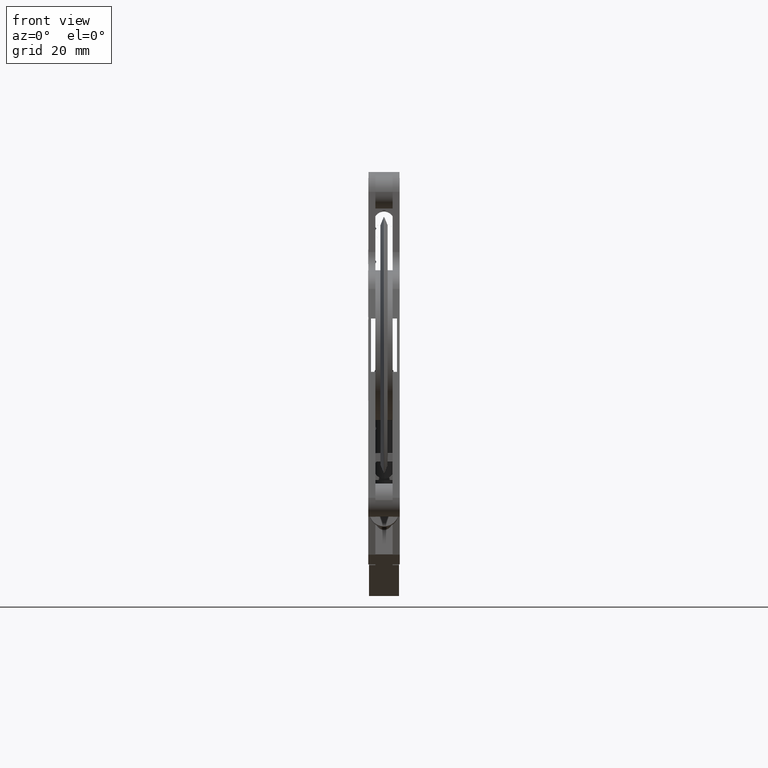
[diagram: clean part render]
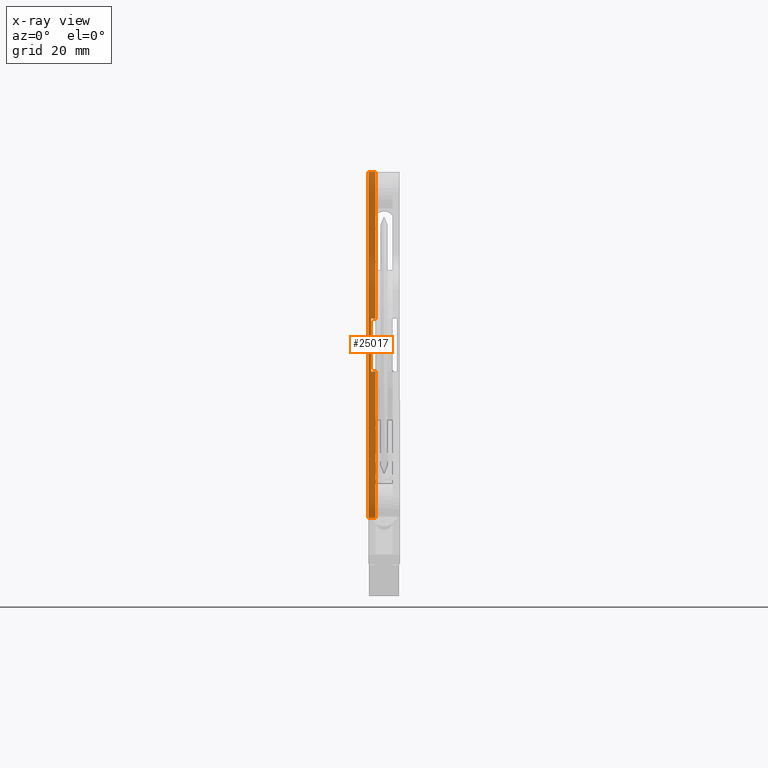
[diagram: x-ray — body ghosted, one internal face saturated and labeled with its STEP entity id]
A machine part, front view, then the same camera in x-ray: the body is ghosted and one INTERNAL B-rep face — a face not visible from any outside direction — is saturated and labeled: STEP entity #25017.
In plain terms, the highlighted planar face has unit normal (0, -1, 0).
Its self-contained STEP definition (entity closure, byte-faithful):
#175 = ORIENTED_EDGE ( 'NONE', *, *, #31965, .F. ) ;
#520 = FACE_OUTER_BOUND ( 'NONE', #5886, .T. ) ;
#954 = CARTESIAN_POINT ( 'NONE',  ( 0.003937007874015747977, 1.259453103652724337, -0.7480314960629920185 ) ) ;
#976 = EDGE_CURVE ( 'NONE', #14698, #24754, #32802, .T. ) ;
#1666 = LINE ( 'NONE', #22722, #4060 ) ;
#2280 = ORIENTED_EDGE ( 'NONE', *, *, #13785, .F. ) ;
#2714 = EDGE_CURVE ( 'NONE', #14698, #9933, #9457, .T. ) ;
#3417 = ORIENTED_EDGE ( 'NONE', *, *, #14573, .F. ) ;
#3760 = VERTEX_POINT ( 'NONE', #34077 ) ;
#4032 = VECTOR ( 'NONE', #12441, 39.37007874015748143 ) ;
#4060 = VECTOR ( 'NONE', #13698, 39.37007874015748143 ) ;
#4786 = VERTEX_POINT ( 'NONE', #7433 ) ;
#5886 = EDGE_LOOP ( 'NONE', ( #22400, #23638, #2280, #9876, #175, #28249, #3417, #19830, #16591, #26909 ) ) ;
#6127 = DIRECTION ( 'NONE',  ( -1.000000000000000000, -0.000000000000000000, -0.000000000000000000 ) ) ;
#6332 = VECTOR ( 'NONE', #12739, 39.37007874015748143 ) ;
#6416 = EDGE_CURVE ( 'NONE', #11910, #37354, #15331, .T. ) ;
#7123 = VECTOR ( 'NONE', #29847, 39.37007874015748143 ) ;
#7177 = VECTOR ( 'NONE', #15417, 39.37007874015748143 ) ;
#7433 = CARTESIAN_POINT ( 'NONE',  ( 0.08425196850393701364, 1.259453103652724337, 2.047244094488188892 ) ) ;
#7743 = CARTESIAN_POINT ( 'NONE',  ( 0.000000000000000000, 1.259453103652724337, -2.047244094488188892 ) ) ;
#8311 = CARTESIAN_POINT ( 'NONE',  ( 0.08425196850393701364, 1.259453103652724337, -2.047244094488188892 ) ) ;
#8745 = CARTESIAN_POINT ( 'NONE',  ( 0.08425196850393701364, 1.259453103652724337, -2.047244094488188892 ) ) ;
#9423 = LINE ( 'NONE', #21370, #25115 ) ;
#9457 = LINE ( 'NONE', #18434, #13115 ) ;
#9622 = PLANE ( 'NONE',  #23268 ) ;
#9682 = EDGE_CURVE ( 'NONE', #4786, #3760, #33813, .T. ) ;
#9876 = ORIENTED_EDGE ( 'NONE', *, *, #9682, .F. ) ;
#9933 = VERTEX_POINT ( 'NONE', #7743 ) ;
#10094 = VERTEX_POINT ( 'NONE', #35897 ) ;
#11884 = CARTESIAN_POINT ( 'NONE',  ( 0.000000000000000000, 1.259453103652724337, -2.047244094488188892 ) ) ;
#11910 = VERTEX_POINT ( 'NONE', #30495 ) ;
#12441 = DIRECTION ( 'NONE',  ( 0.000000000000000000, 0.000000000000000000, 1.000000000000000000 ) ) ;
#12739 = DIRECTION ( 'NONE',  ( 1.000000000000000000, 0.000000000000000000, 0.000000000000000000 ) ) ;
#13115 = VECTOR ( 'NONE', #30376, 39.37007874015748143 ) ;
#13335 = CARTESIAN_POINT ( 'NONE',  ( 0.08425196850393701364, 1.259453103652724337, -2.047244094488188892 ) ) ;
#13698 = DIRECTION ( 'NONE',  ( -1.000000000000000000, 0.000000000000000000, 0.000000000000000000 ) ) ;
#13785 = EDGE_CURVE ( 'NONE', #3760, #11910, #30393, .T. ) ;
#13907 = VERTEX_POINT ( 'NONE', #29766 ) ;
#14228 = LINE ( 'NONE', #26165, #15031 ) ;
#14573 = EDGE_CURVE ( 'NONE', #28756, #10094, #9423, .T. ) ;
#14698 = VERTEX_POINT ( 'NONE', #8311 ) ;
#14925 = EDGE_CURVE ( 'NONE', #10094, #13907, #33664, .T. ) ;
#15031 = VECTOR ( 'NONE', #38092, 39.37007874015748143 ) ;
#15331 = LINE ( 'NONE', #27464, #32038 ) ;
#15417 = DIRECTION ( 'NONE',  ( -1.000000000000000000, -0.000000000000000000, -0.000000000000000000 ) ) ;
#15891 = CARTESIAN_POINT ( 'NONE',  ( 0.08425196850393701364, 1.259453103652724337, -0.3149606299212599492 ) ) ;
#16591 = ORIENTED_EDGE ( 'NONE', *, *, #976, .F. ) ;
#18434 = CARTESIAN_POINT ( 'NONE',  ( 0.08425196850393701364, 1.259453103652724337, -2.047244094488188892 ) ) ;
#19830 = ORIENTED_EDGE ( 'NONE', *, *, #34298, .F. ) ;
#19857 = CARTESIAN_POINT ( 'NONE',  ( 0.03307086614173228301, 1.259453103652724337, -0.3149606299212599492 ) ) ;
#21370 = CARTESIAN_POINT ( 'NONE',  ( 0.03307086614173228301, 1.259453103652724337, -2.047244094488188892 ) ) ;
#22021 = DIRECTION ( 'NONE',  ( -0.000000000000000000, -0.000000000000000000, -1.000000000000000000 ) ) ;
#22400 = ORIENTED_EDGE ( 'NONE', *, *, #27583, .T. ) ;
#22550 = CARTESIAN_POINT ( 'NONE',  ( 0.08425196850393701364, 1.259453103652724337, 0.3149606299212598381 ) ) ;
#22722 = CARTESIAN_POINT ( 'NONE',  ( 0.08425196850393701364, 1.259453103652724337, -0.3149606299212598381 ) ) ;
#23268 = AXIS2_PLACEMENT_3D ( 'NONE', #13335, #37578, #28570 ) ;
#23638 = ORIENTED_EDGE ( 'NONE', *, *, #6416, .F. ) ;
#24496 = DIRECTION ( 'NONE',  ( -0.000000000000000000, 0.000000000000000000, 1.000000000000000000 ) ) ;
#24754 = VERTEX_POINT ( 'NONE', #15891 ) ;
#25017 = ADVANCED_FACE ( 'NONE', ( #520 ), #9622, .F. ) ;
#25115 = VECTOR ( 'NONE', #24496, 39.37007874015748143 ) ;
#26165 = CARTESIAN_POINT ( 'NONE',  ( 0.08425196850393701364, 1.259453103652724337, -2.047244094488188892 ) ) ;
#26909 = ORIENTED_EDGE ( 'NONE', *, *, #2714, .T. ) ;
#27464 = CARTESIAN_POINT ( 'NONE',  ( 0.003937007874015747977, 1.259453103652724337, -0.7480314960629920185 ) ) ;
#27583 = EDGE_CURVE ( 'NONE', #9933, #37354, #35168, .T. ) ;
#27938 = CARTESIAN_POINT ( 'NONE',  ( 0.000000000000000000, 1.259453103652724337, -0.7480314960629920185 ) ) ;
#28249 = ORIENTED_EDGE ( 'NONE', *, *, #14925, .F. ) ;
#28570 = DIRECTION ( 'NONE',  ( 0.000000000000000000, -0.000000000000000000, -1.000000000000000000 ) ) ;
#28756 = VERTEX_POINT ( 'NONE', #19857 ) ;
#29766 = CARTESIAN_POINT ( 'NONE',  ( 0.08425196850393701364, 1.259453103652724337, 0.3149606299212593385 ) ) ;
#29847 = DIRECTION ( 'NONE',  ( 0.000000000000000000, 0.000000000000000000, 1.000000000000000000 ) ) ;
#30376 = DIRECTION ( 'NONE',  ( -1.000000000000000000, -0.000000000000000000, -0.000000000000000000 ) ) ;
#30393 = LINE ( 'NONE', #954, #38763 ) ;
#30495 = CARTESIAN_POINT ( 'NONE',  ( 0.003937007874015747977, 1.259453103652724337, -0.7480314960629920185 ) ) ;
#31965 = EDGE_CURVE ( 'NONE', #13907, #4786, #14228, .T. ) ;
#32038 = VECTOR ( 'NONE', #6127, 39.37007874015748143 ) ;
#32802 = LINE ( 'NONE', #8745, #4032 ) ;
#33664 = LINE ( 'NONE', #22550, #6332 ) ;
#33813 = LINE ( 'NONE', #35995, #7177 ) ;
#34077 = CARTESIAN_POINT ( 'NONE',  ( 0.003937007874015747977, 1.259453103652724337, 2.047244094488188892 ) ) ;
#34298 = EDGE_CURVE ( 'NONE', #24754, #28756, #1666, .T. ) ;
#35168 = LINE ( 'NONE', #11884, #7123 ) ;
#35897 = CARTESIAN_POINT ( 'NONE',  ( 0.03307086614173228301, 1.259453103652724337, 0.3149606299212597826 ) ) ;
#35995 = CARTESIAN_POINT ( 'NONE',  ( 0.08425196850393701364, 1.259453103652724337, 2.047244094488188892 ) ) ;
#37354 = VERTEX_POINT ( 'NONE', #27938 ) ;
#37578 = DIRECTION ( 'NONE',  ( 0.000000000000000000, -1.000000000000000000, 0.000000000000000000 ) ) ;
#38092 = DIRECTION ( 'NONE',  ( 0.000000000000000000, 0.000000000000000000, 1.000000000000000000 ) ) ;
#38763 = VECTOR ( 'NONE', #22021, 39.37007874015748143 ) ;